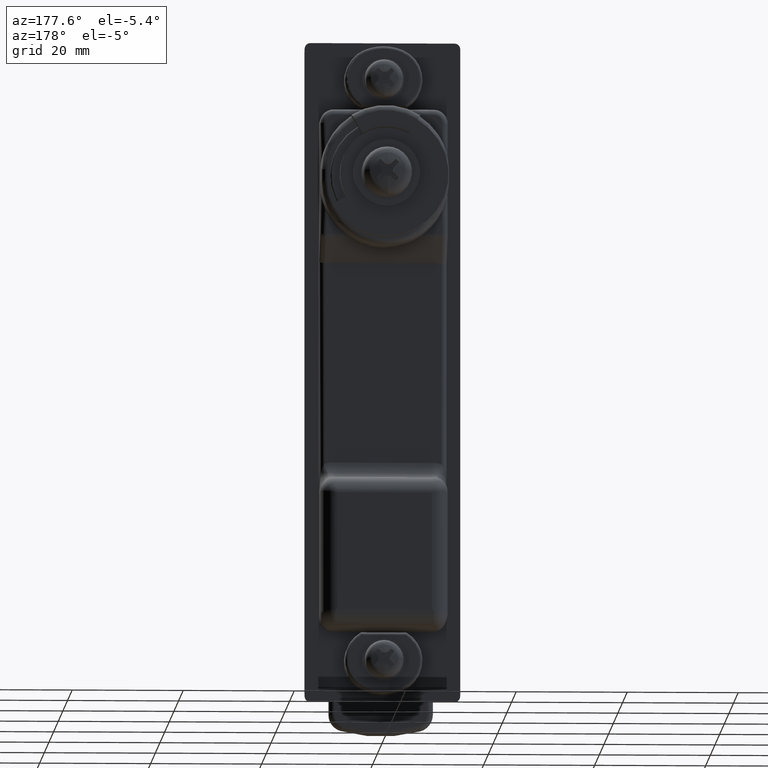
[diagram: clean part render]
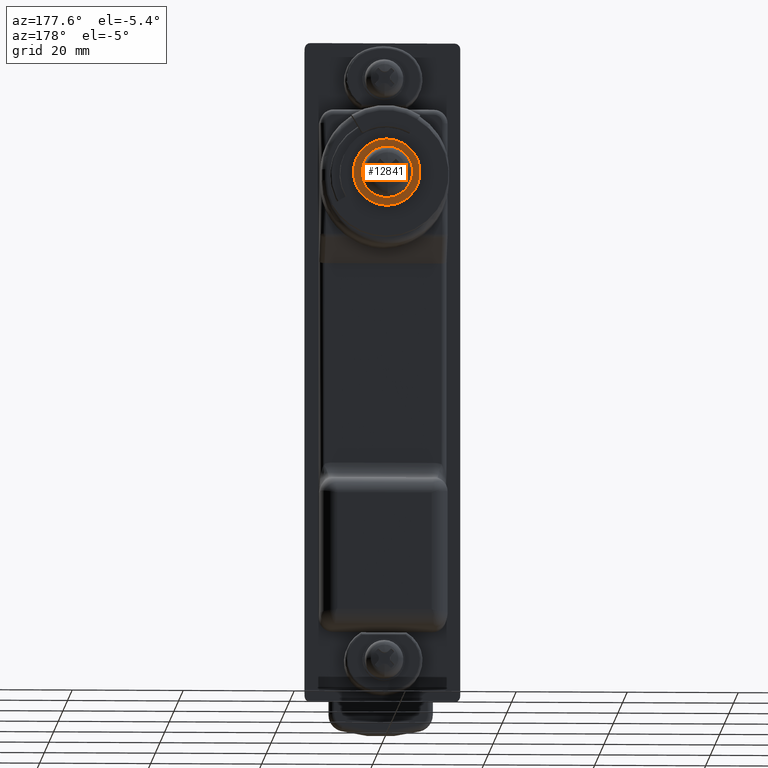
[diagram: same view with one face highlighted and labeled with its STEP entity id]
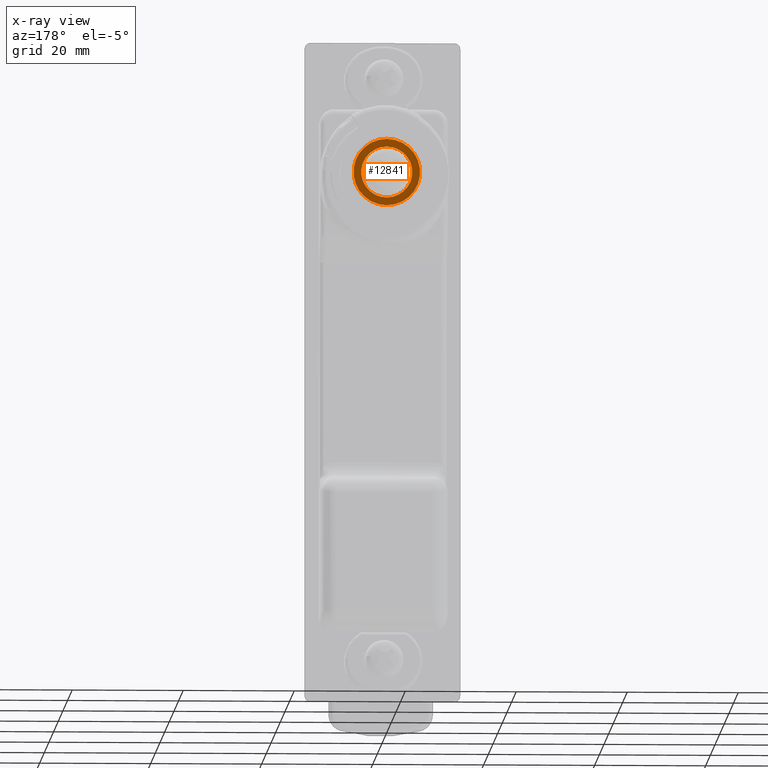
[diagram: x-ray of the same camera — body ghosted, the highlighted face saturated]
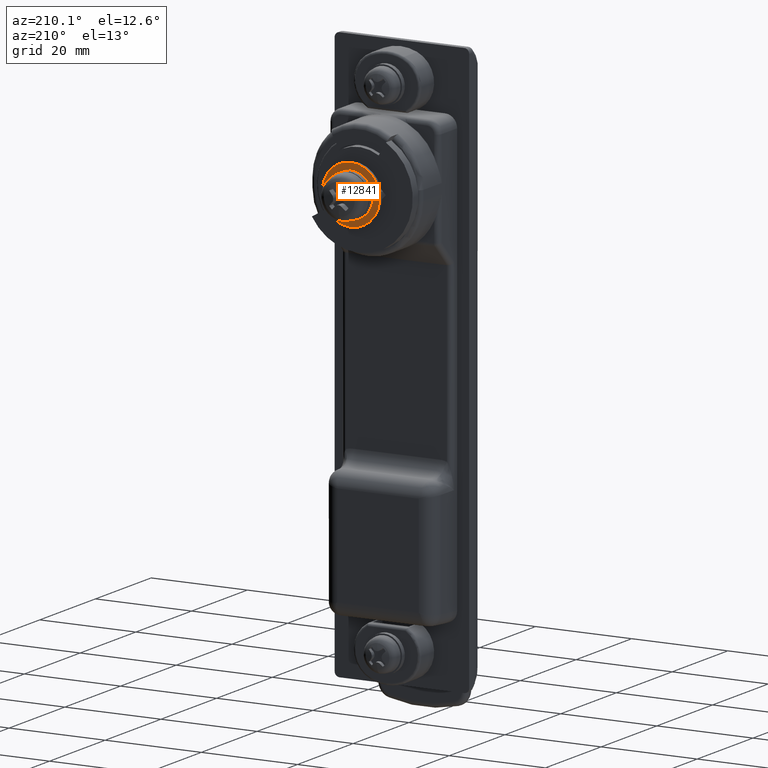
[diagram: same view with one face highlighted and labeled with its STEP entity id]
A machine part, auxiliary view. The second image highlights one B-rep face of the part: STEP entity #12841.
The next image is the same camera in x-ray: the body ghosted, the highlighted face saturated — about 0% of this face is hidden behind the body in this view.
A second angle (auxiliary view) of the same face is appended — the face is thin or edge-on in the first view.
In plain terms, the highlighted planar face has unit normal (0, -1, 0).
Its self-contained STEP definition (entity closure, byte-faithful):
#12822 = ORIENTED_EDGE ( 'NONE', *, *, #12919, .T. ) ;
#12823 = ORIENTED_EDGE ( 'NONE', *, *, #12840, .T. ) ;
#12840 = EDGE_CURVE ( 'NONE', #12917, #12920, #20203, .T. ) ;
#12841 = ADVANCED_FACE ( 'NONE', ( #20199, #20198 ), #20197, .F. ) ;
#12842 = EDGE_LOOP ( 'NONE', ( #12843, #12844 ) ) ;
#12843 = ORIENTED_EDGE ( 'NONE', *, *, #12866, .F. ) ;
#12844 = ORIENTED_EDGE ( 'NONE', *, *, #12845, .F. ) ;
#12845 = EDGE_CURVE ( 'NONE', #12867, #12907, #20192, .T. ) ;
#12846 = EDGE_LOOP ( 'NONE', ( #12822, #12823 ) ) ;
#12866 = EDGE_CURVE ( 'NONE', #12907, #12867, #20496, .T. ) ;
#12867 = VERTEX_POINT ( 'NONE', #20491 ) ;
#12907 = VERTEX_POINT ( 'NONE', #20390 ) ;
#12917 = VERTEX_POINT ( 'NONE', #20440 ) ;
#12919 = EDGE_CURVE ( 'NONE', #12920, #12917, #20439, .T. ) ;
#12920 = VERTEX_POINT ( 'NONE', #20434 ) ;
#20191 = AXIS2_PLACEMENT_3D ( 'NONE', #20295, #20294, #20293 ) ;
#20192 = CIRCLE ( 'NONE', #20191, 5.999999999999289500 ) ;
#20193 = DIRECTION ( 'NONE',  ( 0.0000000000000000000, 0.0000000000000000000, 1.000000000000000000 ) ) ;
#20194 = DIRECTION ( 'NONE',  ( -1.000000000000000000, 0.0000000000000000000, 0.0000000000000000000 ) ) ;
#20195 = CARTESIAN_POINT ( 'NONE',  ( 0.8000000000000110400, 0.0000000000000000000, 4.600000000000079600 ) ) ;
#20196 = AXIS2_PLACEMENT_3D ( 'NONE', #20195, #20194, #20193 ) ;
#20197 = PLANE ( 'NONE',  #20196 ) ;
#20198 = FACE_BOUND ( 'NONE', #12846, .T. ) ;
#20199 = FACE_OUTER_BOUND ( 'NONE', #12842, .T. ) ;
#20200 = DIRECTION ( 'NONE',  ( 0.0000000000000000000, 0.0000000000000000000, 1.000000000000000000 ) ) ;
#20201 = DIRECTION ( 'NONE',  ( -1.000000000000000000, 0.0000000000000000000, 0.0000000000000000000 ) ) ;
#20202 = AXIS2_PLACEMENT_3D ( 'NONE', #20208, #20201, #20200 ) ;
#20203 = CIRCLE ( 'NONE', #20202, 4.600000000000079600 ) ;
#20208 = CARTESIAN_POINT ( 'NONE',  ( 0.8000000000000110400, 0.0000000000000000000, -8.881784197001250400E-016 ) ) ;
#20293 = DIRECTION ( 'NONE',  ( 0.0000000000000000000, 0.0000000000000000000, 1.000000000000000000 ) ) ;
#20294 = DIRECTION ( 'NONE',  ( -1.000000000000000000, 0.0000000000000000000, 0.0000000000000000000 ) ) ;
#20295 = CARTESIAN_POINT ( 'NONE',  ( 0.8000000000000110400, 0.0000000000000000000, -8.881784197001250400E-016 ) ) ;
#20390 = CARTESIAN_POINT ( 'NONE',  ( 0.8000000000000110400, 0.0000000000000000000, 5.999999999999288600 ) ) ;
#20434 = CARTESIAN_POINT ( 'NONE',  ( 0.8000000000000110400, 0.0000000000000000000, 4.600000000000078700 ) ) ;
#20435 = DIRECTION ( 'NONE',  ( 0.0000000000000000000, 0.0000000000000000000, 1.000000000000000000 ) ) ;
#20436 = DIRECTION ( 'NONE',  ( -1.000000000000000000, 0.0000000000000000000, 0.0000000000000000000 ) ) ;
#20437 = CARTESIAN_POINT ( 'NONE',  ( 0.8000000000000110400, 0.0000000000000000000, -8.881784197001250400E-016 ) ) ;
#20438 = AXIS2_PLACEMENT_3D ( 'NONE', #20437, #20436, #20435 ) ;
#20439 = CIRCLE ( 'NONE', #20438, 4.600000000000079600 ) ;
#20440 = CARTESIAN_POINT ( 'NONE',  ( 0.8000000000000110400, 5.633189227583032800E-016, -4.600000000000080500 ) ) ;
#20491 = CARTESIAN_POINT ( 'NONE',  ( 0.8000000000000110400, 7.347638122933393800E-016, -5.999999999999290300 ) ) ;
#20492 = DIRECTION ( 'NONE',  ( 0.0000000000000000000, 0.0000000000000000000, 1.000000000000000000 ) ) ;
#20493 = DIRECTION ( 'NONE',  ( -1.000000000000000000, 0.0000000000000000000, 0.0000000000000000000 ) ) ;
#20494 = CARTESIAN_POINT ( 'NONE',  ( 0.8000000000000110400, 0.0000000000000000000, -8.881784197001250400E-016 ) ) ;
#20495 = AXIS2_PLACEMENT_3D ( 'NONE', #20494, #20493, #20492 ) ;
#20496 = CIRCLE ( 'NONE', #20495, 5.999999999999289500 ) ;